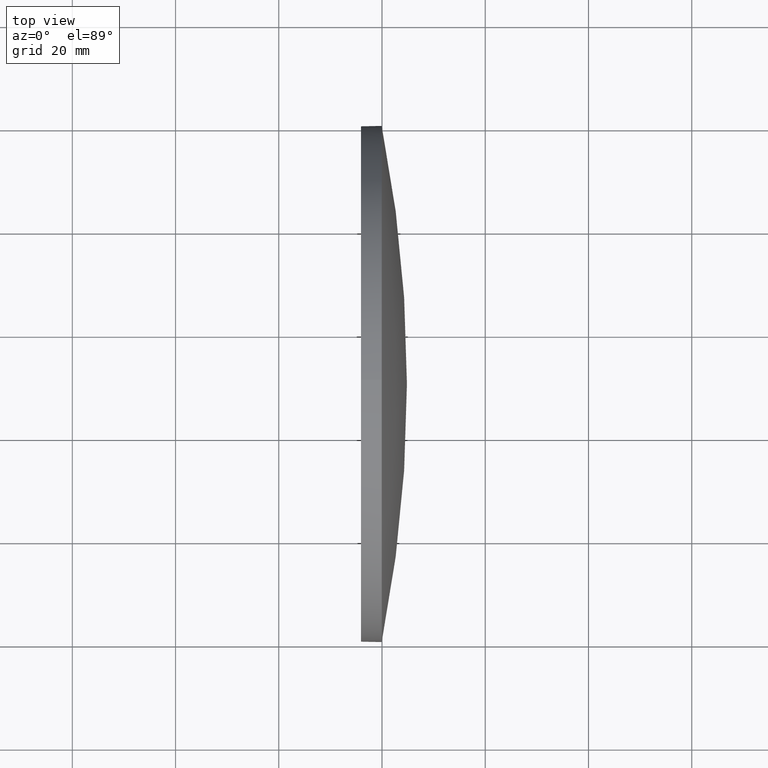
[diagram: clean part render]
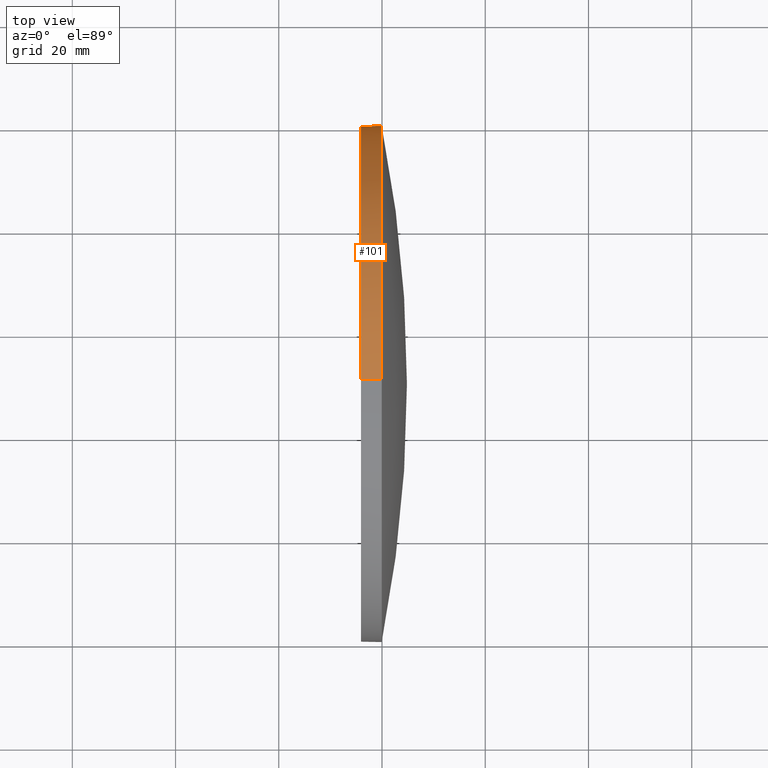
[diagram: same view with one face highlighted and labeled with its STEP entity id]
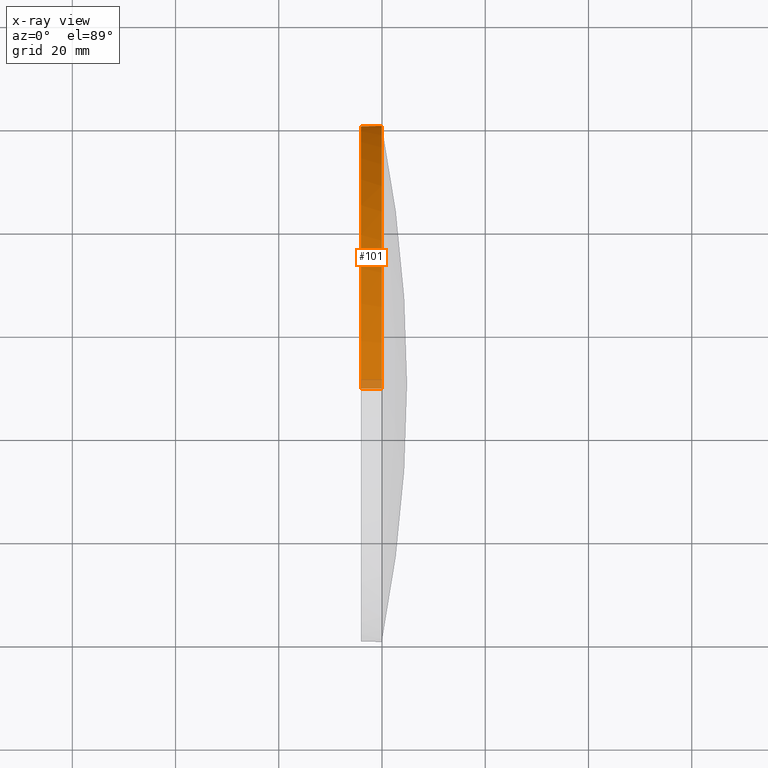
[diagram: x-ray of the same camera — body ghosted, the highlighted face saturated]
A machine part, top view. The second image highlights one B-rep face of the part: STEP entity #101.
The next image is the same camera in x-ray: the body ghosted, the highlighted face saturated — about 3% of this face is hidden behind the body in this view.
In plain terms, the highlighted cylindrical surface (partial cylindrical patch) has radius 50 mm, axis along (-1, -0, -0).
Its self-contained STEP definition (entity closure, byte-faithful):
#2 = DIRECTION ( 'NONE',  ( -1.000000000000000000, -0.0000000000000000000, -0.0000000000000000000 ) ) ;
#7 = VERTEX_POINT ( 'NONE', #50 ) ;
#9 = CYLINDRICAL_SURFACE ( 'NONE', #85, 50.00000000000001400 ) ;
#13 = DIRECTION ( 'NONE',  ( -1.000000000000000000, -0.0000000000000000000, -0.0000000000000000000 ) ) ;
#14 = DIRECTION ( 'NONE',  ( 0.0000000000000000000, 0.0000000000000000000, 1.000000000000000000 ) ) ;
#15 = CARTESIAN_POINT ( 'NONE',  ( 239.9389074292314500, 130.0418907599245100, 50.00000000000001400 ) ) ;
#22 = VECTOR ( 'NONE', #13, 1000.000000000000000 ) ;
#23 = CARTESIAN_POINT ( 'NONE',  ( 239.9389074292314500, 130.0418907599245100, 0.0000000000000000000 ) ) ;
#28 = CARTESIAN_POINT ( 'NONE',  ( 217.3311486608872700, 130.0418907599245100, -50.00000000000001400 ) ) ;
#40 = EDGE_CURVE ( 'NONE', #110, #7, #57, .T. ) ;
#46 = EDGE_CURVE ( 'NONE', #7, #116, #137, .T. ) ;
#48 = VECTOR ( 'NONE', #2, 1000.000000000000000 ) ;
#50 = CARTESIAN_POINT ( 'NONE',  ( 235.9389074292314500, 130.0418907599245100, 50.00000000000001400 ) ) ;
#57 = LINE ( 'NONE', #166, #22 ) ;
#58 = CIRCLE ( 'NONE', #150, 50.00000000000001400 ) ;
#63 = CARTESIAN_POINT ( 'NONE',  ( 235.9389074292314500, 130.0418907599245100, -50.00000000000001400 ) ) ;
#64 = FACE_OUTER_BOUND ( 'NONE', #79, .T. ) ;
#79 = EDGE_LOOP ( 'NONE', ( #121, #132, #87, #90, #178 ) ) ;
#80 = DIRECTION ( 'NONE',  ( 0.0000000000000000000, 0.0000000000000000000, 1.000000000000000000 ) ) ;
#83 = AXIS2_PLACEMENT_3D ( 'NONE', #167, #183, #14 ) ;
#85 = AXIS2_PLACEMENT_3D ( 'NONE', #177, #185, #80 ) ;
#87 = ORIENTED_EDGE ( 'NONE', *, *, #46, .F. ) ;
#90 = ORIENTED_EDGE ( 'NONE', *, *, #40, .F. ) ;
#97 = EDGE_CURVE ( 'NONE', #110, #151, #130, .T. ) ;
#101 = ADVANCED_FACE ( 'NONE', ( #64 ), #9, .T. ) ;
#102 = CARTESIAN_POINT ( 'NONE',  ( 239.9389074292314500, 130.0418907599245100, 0.0000000000000000000 ) ) ;
#103 = CARTESIAN_POINT ( 'NONE',  ( 239.9389074292314500, 180.0418907599244300, 0.0000000000000000000 ) ) ;
#110 = VERTEX_POINT ( 'NONE', #15 ) ;
#111 = EDGE_CURVE ( 'NONE', #151, #182, #58, .T. ) ;
#116 = VERTEX_POINT ( 'NONE', #63 ) ;
#121 = ORIENTED_EDGE ( 'NONE', *, *, #111, .T. ) ;
#128 = DIRECTION ( 'NONE',  ( -1.000000000000000000, -0.0000000000000000000, -0.0000000000000000000 ) ) ;
#130 = CIRCLE ( 'NONE', #173, 50.00000000000001400 ) ;
#132 = ORIENTED_EDGE ( 'NONE', *, *, #145, .T. ) ;
#137 = CIRCLE ( 'NONE', #83, 50.00000000000001400 ) ;
#140 = DIRECTION ( 'NONE',  ( -1.000000000000000000, -0.0000000000000000000, -0.0000000000000000000 ) ) ;
#141 = LINE ( 'NONE', #28, #48 ) ;
#145 = EDGE_CURVE ( 'NONE', #182, #116, #141, .T. ) ;
#150 = AXIS2_PLACEMENT_3D ( 'NONE', #102, #140, #161 ) ;
#151 = VERTEX_POINT ( 'NONE', #103 ) ;
#161 = DIRECTION ( 'NONE',  ( 0.0000000000000000000, 0.0000000000000000000, 1.000000000000000000 ) ) ;
#166 = CARTESIAN_POINT ( 'NONE',  ( 217.3311486608872700, 130.0418907599245100, 50.00000000000001400 ) ) ;
#167 = CARTESIAN_POINT ( 'NONE',  ( 235.9389074292314500, 130.0418907599245100, 0.0000000000000000000 ) ) ;
#169 = CARTESIAN_POINT ( 'NONE',  ( 239.9389074292314500, 130.0418907599245100, -50.00000000000001400 ) ) ;
#173 = AXIS2_PLACEMENT_3D ( 'NONE', #23, #128, #175 ) ;
#175 = DIRECTION ( 'NONE',  ( 0.0000000000000000000, 0.0000000000000000000, 1.000000000000000000 ) ) ;
#177 = CARTESIAN_POINT ( 'NONE',  ( 217.3311486608872700, 130.0418907599245100, 0.0000000000000000000 ) ) ;
#178 = ORIENTED_EDGE ( 'NONE', *, *, #97, .T. ) ;
#182 = VERTEX_POINT ( 'NONE', #169 ) ;
#183 = DIRECTION ( 'NONE',  ( -1.000000000000000000, -0.0000000000000000000, -0.0000000000000000000 ) ) ;
#185 = DIRECTION ( 'NONE',  ( -1.000000000000000000, -0.0000000000000000000, -0.0000000000000000000 ) ) ;